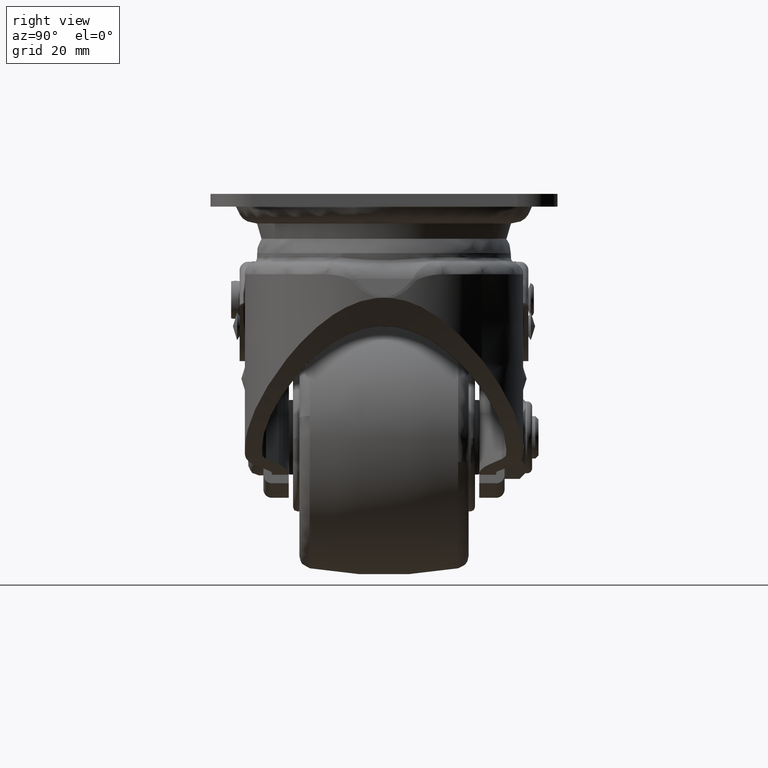
[diagram: clean part render]
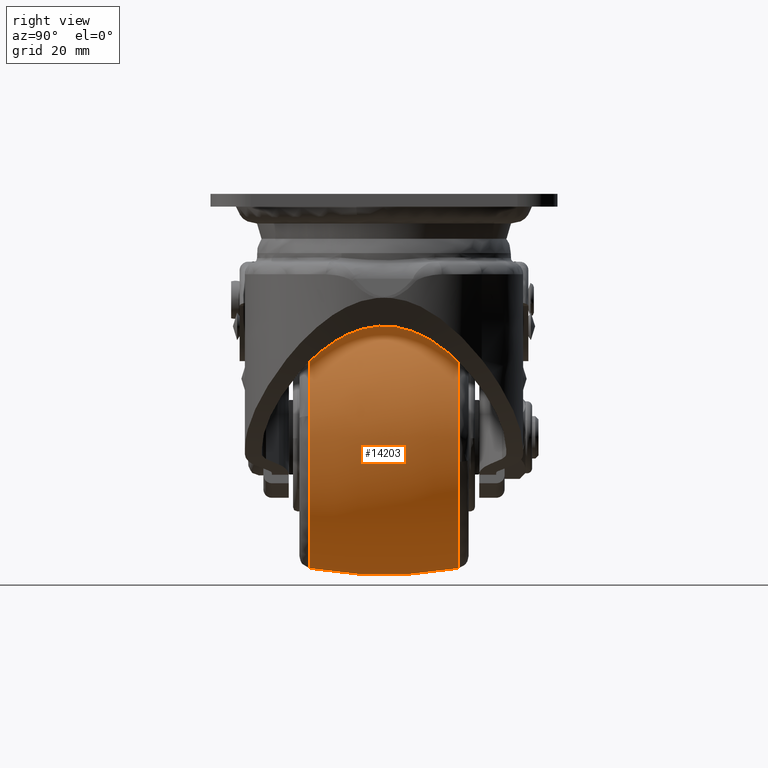
[diagram: same view with one face highlighted and labeled with its STEP entity id]
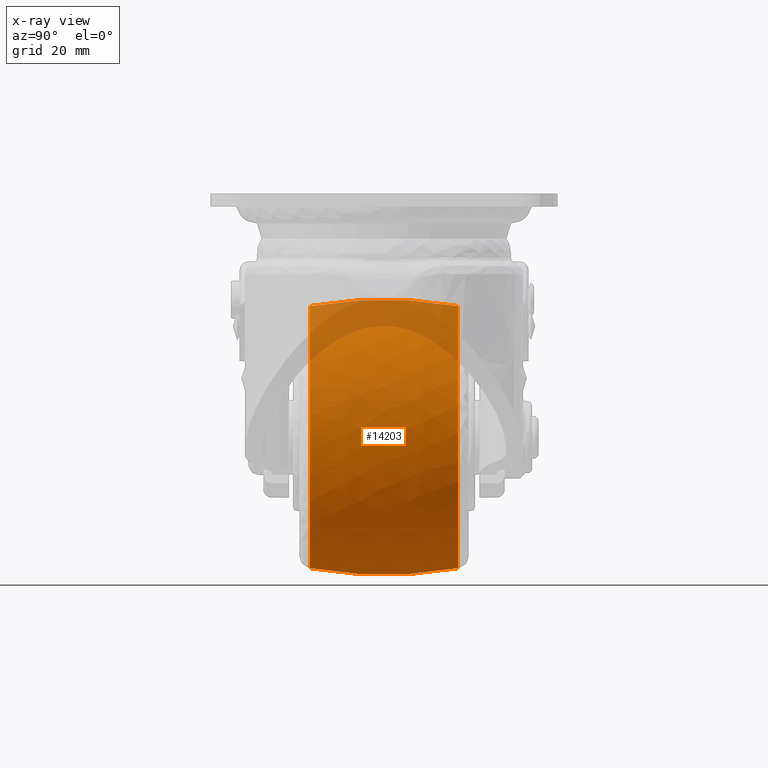
[diagram: x-ray of the same camera — body ghosted, the highlighted face saturated]
A machine part, right view. The second image highlights one B-rep face of the part: STEP entity #14203.
The next image is the same camera in x-ray: the body ghosted, the highlighted face saturated — about 13% of this face is hidden behind the body in this view.
In plain terms, the highlighted face is a freeform B-spline surface patch.
Its self-contained STEP definition (entity closure, byte-faithful):
#14060=CARTESIAN_POINT('',(-0.856139173198748,-19.280469753875106,-30.623715207231665));
#14061=CARTESIAN_POINT('',(-0.908593974985395,-9.731530490283955,-32.500000000000000));
#14062=CARTESIAN_POINT('',(-0.908593974985395,0.0,-32.500000000000007));
#14063=CARTESIAN_POINT('',(-0.908593974985395,9.731530490283953,-32.500000000000000));
#14064=CARTESIAN_POINT('',(-0.856139173198748,19.280469753875099,-30.623715207231665));
#14065=CARTESIAN_POINT('',(-0.430562556700532,-19.280469753875106,-30.623715207231669));
#14066=CARTESIAN_POINT('',(-0.456942699410385,-9.731530490283957,-32.500000000000000));
#14067=CARTESIAN_POINT('',(-0.456942699410385,0.0,-32.500000000000000));
#14068=CARTESIAN_POINT('',(-0.456942699410385,9.731530490283955,-32.500000000000000));
#14069=CARTESIAN_POINT('',(-0.430562556700532,19.280469753875096,-30.623715207231669));
#14070=CARTESIAN_POINT('',(30.623715207231665,-19.280469753875089,-30.623715207231665));
#14071=CARTESIAN_POINT('',(32.499999999999993,-9.731530490283953,-32.499999999999993));
#14072=CARTESIAN_POINT('',(32.500000000000007,0.0,-32.500000000000007));
#14073=CARTESIAN_POINT('',(32.499999999999993,9.731530490283952,-32.499999999999993));
#14074=CARTESIAN_POINT('',(30.623715207231665,19.280469753875089,-30.623715207231665));
#14075=CARTESIAN_POINT('',(30.623715207231662,-19.280469753875103,0.0));
#14076=CARTESIAN_POINT('',(32.499999999999993,-9.731530490283957,0.0));
#14077=CARTESIAN_POINT('',(32.500000000000000,0.0,0.0));
#14078=CARTESIAN_POINT('',(32.499999999999993,9.731530490283955,0.0));
#14079=CARTESIAN_POINT('',(30.623715207231673,19.280469753875103,0.0));
#14080=CARTESIAN_POINT('',(30.623715207231665,-19.280469753875089,30.623715207231665));
#14081=CARTESIAN_POINT('',(32.499999999999993,-9.731530490283953,32.499999999999993));
#14082=CARTESIAN_POINT('',(32.500000000000007,0.0,32.500000000000007));
#14083=CARTESIAN_POINT('',(32.499999999999993,9.731530490283952,32.499999999999993));
#14084=CARTESIAN_POINT('',(30.623715207231665,19.280469753875089,30.623715207231665));
#14085=CARTESIAN_POINT('',(-0.430562556700530,-19.280469753875106,30.623715207231669));
#14086=CARTESIAN_POINT('',(-0.456942699410383,-9.731530490283957,32.500000000000000));
#14087=CARTESIAN_POINT('',(-0.456942699410383,0.0,32.500000000000000));
#14088=CARTESIAN_POINT('',(-0.456942699410383,9.731530490283955,32.500000000000000));
#14089=CARTESIAN_POINT('',(-0.430562556700530,19.280469753875096,30.623715207231669));
#14090=CARTESIAN_POINT('',(-0.856139173198744,-19.280469753875106,30.623715207231665));
#14091=CARTESIAN_POINT('',(-0.908593974985391,-9.731530490283957,32.500000000000000));
#14092=CARTESIAN_POINT('',(-0.908593974985391,0.0,32.500000000000007));
#14093=CARTESIAN_POINT('',(-0.908593974985391,9.731530490283955,32.500000000000000));
#14094=CARTESIAN_POINT('',(-0.856139173198744,19.280469753875099,30.623715207231665));
#14102=(BOUNDED_SURFACE()B_SPLINE_SURFACE(2,2,((#14060,#14065,#14070,#14075,#14080,#14085,#14090),(#14061,#14066,#14071,#14076,#14081,#14086,#14091),(#14062,#14067,#14072,#14077,#14082,#14087,#14092),(#14063,#14068,#14073,#14078,#14083,#14088,#14093),(#14064,#14069,#14074,#14079,#14084,#14089,#14094)),.UNSPECIFIED.,.F.,.F.,.U.)B_SPLINE_SURFACE_WITH_KNOTS((3,2,3),(3,1,2,1,3),(0.0,19.675401992808450,39.350803985616913),(0.0,1.076955262170050,54.924718370672409,108.772481479174800,109.849436741344800),.UNSPECIFIED.)GEOMETRIC_REPRESENTATION_ITEM()RATIONAL_B_SPLINE_SURFACE(((0.980708699014471,0.975030366269227,0.685435396261778,0.969352033523983,0.685435396261778,0.975030366269227,0.980708699014471),(0.991408181386219,0.985667898317530,0.692913461814418,0.979927615248842,0.692913461814418,0.985667898317530,0.991408181386219),(1.011715728752538,1.005857864376269,0.707106781186548,1.0,0.707106781186548,1.005857864376269,1.011715728752538),(0.991408181386219,0.985667898317530,0.692913461814418,0.979927615248842,0.692913461814418,0.985667898317530,0.991408181386219),(0.980708699014471,0.975030366269227,0.685435396261778,0.969352033523983,0.685435396261778,0.975030366269227,0.980708699014471)))REPRESENTATION_ITEM('')SURFACE());
#14103=CARTESIAN_POINT('',(0.0,-17.525756904777200,-30.952261756215570));
#14104=VERTEX_POINT('',#14103);
#14105=CARTESIAN_POINT('',(0.0,17.525757398797310,-30.952261668273788));
#14106=VERTEX_POINT('',#14105);
#14107=CARTESIAN_POINT('',(0.0,-17.525756904777200,-30.952261756215570));
#14108=CARTESIAN_POINT('',(0.0,-13.731753041258729,-31.627707705307451));
#14109=CARTESIAN_POINT('',(0.0,-5.244160757840192,-32.637070499115872));
#14110=CARTESIAN_POINT('',(0.0,6.528711555005019,-32.523672457987388));
#14111=CARTESIAN_POINT('',(0.0,14.364082624947550,-31.515085282215860));
#14112=CARTESIAN_POINT('',(0.0,17.525757398797310,-30.952261668273788));
#14113=B_SPLINE_CURVE_WITH_KNOTS('',3,(#14107,#14108,#14109,#14110,#14111,#14112),.UNSPECIFIED.,.F.,.U.,(4,1,1,4),(2.074358E-009,11.560991973890641,25.599329907010421,35.233487682683823),.UNSPECIFIED.);
#14114=EDGE_CURVE('',#14104,#14106,#14113,.T.);
#14115=ORIENTED_EDGE('',*,*,#14114,.T.);
#14116=CARTESIAN_POINT('',(30.404010644363709,17.525757632874960,-5.799875218801160));
#14117=VERTEX_POINT('',#14116);
#14118=CARTESIAN_POINT('',(0.0,17.525757398797310,-30.952261668273788));
#14119=CARTESIAN_POINT('',(2.284163301907650,17.525757409237411,-30.952742287435299));
#14120=CARTESIAN_POINT('',(5.459423252968588,17.525757425089999,-30.599081582039709));
#14121=CARTESIAN_POINT('',(10.411086875688349,17.525757452797698,-29.257582977142000));
#14122=CARTESIAN_POINT('',(14.118507786583031,17.525757475709241,-27.680217664327628));
#14123=CARTESIAN_POINT('',(17.583655512929290,17.525757499645021,-25.538878561075720));
#14124=CARTESIAN_POINT('',(20.632925520466429,17.525757522458228,-23.191693632685318));
#14125=CARTESIAN_POINT('',(23.952864662444430,17.525757550190662,-19.870412732688479));
#14126=CARTESIAN_POINT('',(27.037663540342699,17.525757581184429,-15.402388973562880));
#14127=CARTESIAN_POINT('',(29.232042630799651,17.525757609494541,-10.567172478993880));
#14128=CARTESIAN_POINT('',(30.101365819403501,17.525757625491892,-7.386867972357464));
#14129=CARTESIAN_POINT('',(30.404010644363709,17.525757632874960,-5.799875218801160));
#14130=B_SPLINE_CURVE_WITH_KNOTS('',3,(#14118,#14119,#14120,#14121,#14122,#14123,#14124,#14125,#14126,#14127,#14128,#14129),.UNSPECIFIED.,.F.,.U.,(4,1,1,1,1,1,1,1,1,4),(0.000000057731363,6.852342200838592,9.526432670068871,15.376020998603050,18.885774997789639,21.726917074534040,26.907971532102920,32.924695718113597,37.938609643321527,42.785386132696857),.UNSPECIFIED.);
#14131=EDGE_CURVE('',#14106,#14117,#14130,.T.);
#14132=ORIENTED_EDGE('',*,*,#14131,.T.);
#14133=CARTESIAN_POINT('',(0.0,17.525757398711619,30.952261668289051));
#14134=VERTEX_POINT('',#14133);
#14135=CARTESIAN_POINT('',(30.404010644363709,17.525757632874960,-5.799875218801160));
#14136=CARTESIAN_POINT('',(30.816210809150661,17.525757625996441,-3.640829887698513));
#14137=CARTESIAN_POINT('',(31.084289574936790,17.525757614467519,-0.371750404461972));
#14138=CARTESIAN_POINT('',(30.744127757767039,17.525757596530269,4.088197736654201));
#14139=CARTESIAN_POINT('',(30.139817033729560,17.525757582492808,7.298961754163256));
#14140=CARTESIAN_POINT('',(29.013912450203179,17.525757564827089,11.037345102150580));
#14141=CARTESIAN_POINT('',(27.319525889203089,17.525757545291501,14.799844457867010));
#14142=CARTESIAN_POINT('',(24.886989071789792,17.525757523460069,18.558924646848819));
#14143=CARTESIAN_POINT('',(22.205898339878949,17.525757503230711,21.688736586414699));
#14144=CARTESIAN_POINT('',(19.245826490913871,17.525757483910390,24.347852067073941));
#14145=CARTESIAN_POINT('',(15.973181017667910,17.525757465113461,26.609726922200242));
#14146=CARTESIAN_POINT('',(12.313182780960300,17.525757446496740,28.504143356068340));
#14147=CARTESIAN_POINT('',(8.426312728130156,17.525757429131311,29.879833802141381));
#14148=CARTESIAN_POINT('',(4.254194455213054,17.525757412777860,30.752319629986580));
#14149=CARTESIAN_POINT('',(1.488980895002066,17.525757403369401,30.952342266698590));
#14150=CARTESIAN_POINT('',(0.0,17.525757398711619,30.952261668289051));
#14151=B_SPLINE_CURVE_WITH_KNOTS('',3,(#14135,#14136,#14137,#14138,#14139,#14140,#14141,#14142,#14143,#14144,#14145,#14146,#14147,#14148,#14149,#14150),.UNSPECIFIED.,.F.,.U.,(4,1,1,1,1,1,1,1,1,1,1,1,1,4),(0.000000074662104,6.594036469592311,9.784726138077552,13.400831171962810,16.378801175785171,21.483910365155069,25.738155883950000,29.779573433638969,33.821109766040387,37.649937563571171,41.691477252978672,46.158433652287869,49.987231402801662,54.454168084194450),.UNSPECIFIED.);
#14152=EDGE_CURVE('',#14117,#14134,#14151,.T.);
#14153=ORIENTED_EDGE('',*,*,#14152,.T.);
#14154=CARTESIAN_POINT('',(0.0,-17.525756904688699,30.952261756231341));
#14155=VERTEX_POINT('',#14154);
#14156=CARTESIAN_POINT('',(0.0,-17.525756904688699,30.952261756231341));
#14157=CARTESIAN_POINT('',(0.0,-13.099426192627050,31.740423722107799));
#14158=CARTESIAN_POINT('',(0.0,-6.060097870994613,32.508459473154623));
#14159=CARTESIAN_POINT('',(0.0,5.693086236895363,32.540828550917702));
#14160=CARTESIAN_POINT('',(0.0,12.918759671097369,31.772606386088501));
#14161=CARTESIAN_POINT('',(0.0,17.525757398711619,30.952261668289051));
#14162=B_SPLINE_CURVE_WITH_KNOTS('',3,(#14156,#14157,#14158,#14159,#14160,#14161),.UNSPECIFIED.,.F.,.U.,(4,1,1,4),(2.077499E-009,13.487826392860921,21.195138228113748,35.233487682506912),.UNSPECIFIED.);
#14163=EDGE_CURVE('',#14155,#14134,#14162,.T.);
#14164=ORIENTED_EDGE('',*,*,#14163,.F.);
#14165=CARTESIAN_POINT('',(30.540160180517539,-17.525757149005031,5.033987871736263));
#14166=VERTEX_POINT('',#14165);
#14167=CARTESIAN_POINT('',(30.540160180517539,-17.525757149005031,5.033987871736263));
#14168=CARTESIAN_POINT('',(30.171572617331929,-17.525757138453429,7.272804346847791));
#14169=CARTESIAN_POINT('',(29.107989096521209,-17.525757118542479,11.063991061530171));
#14170=CARTESIAN_POINT('',(26.464933743618172,-17.525757085350929,16.358990358311459));
#14171=CARTESIAN_POINT('',(23.508455346056589,-17.525757055893749,20.338759944916291));
#14172=CARTESIAN_POINT('',(19.885448596851159,-17.525757025112839,23.868941405167028));
#14173=CARTESIAN_POINT('',(16.235614978438171,-17.525756997768191,26.496697575435089));
#14174=CARTESIAN_POINT('',(12.281729640665780,-17.525756971455490,28.505356736036241));
#14175=CARTESIAN_POINT('',(8.907597276250712,-17.525756951041540,29.702124997908282));
#14176=CARTESIAN_POINT('',(4.878093573378161,-17.525756928473360,30.672919979011109));
#14177=CARTESIAN_POINT('',(1.985329298955690,-17.525756913918890,30.952538935773472));
#14178=CARTESIAN_POINT('',(0.0,-17.525756904688699,30.952261756231341));
#14179=B_SPLINE_CURVE_WITH_KNOTS('',3,(#14167,#14168,#14169,#14170,#14171,#14172,#14173,#14174,#14175,#14176,#14177,#14178),.UNSPECIFIED.,.F.,.U.,(4,1,1,1,1,1,1,1,1,4),(0.000000060971736,6.806764528404450,11.741672311713369,17.697613645466131,21.611529273632829,26.886717073184080,31.140948324566232,34.884679294881593,37.607386250612791,43.563304237466063),.UNSPECIFIED.);
#14180=EDGE_CURVE('',#14166,#14155,#14179,.T.);
#14181=ORIENTED_EDGE('',*,*,#14180,.F.);
#14182=CARTESIAN_POINT('',(0.0,-17.525756904777200,-30.952261756215570));
#14183=CARTESIAN_POINT('',(2.236541337373022,-17.525756912265411,-30.952691506914661));
#14184=CARTESIAN_POINT('',(5.381439462148137,-17.525756924149661,-30.609849260347168));
#14185=CARTESIAN_POINT('',(9.436996071649165,-17.525756942001198,-29.527375206296870));
#14186=CARTESIAN_POINT('',(12.323488747614350,-17.525756955896838,-28.455250480570982));
#14187=CARTESIAN_POINT('',(15.897400364529350,-17.525756974860428,-26.681928671842780));
#14188=CARTESIAN_POINT('',(19.307114000125690,-17.525756995538629,-24.334649760068132));
#14189=CARTESIAN_POINT('',(22.897653900384832,-17.525757020718380,-20.999533846138039));
#14190=CARTESIAN_POINT('',(25.567078267044160,-17.525757042860139,-17.652561179935439));
#14191=CARTESIAN_POINT('',(27.599201845803091,-17.525757063533540,-14.137251294482050));
#14192=CARTESIAN_POINT('',(29.222726115539380,-17.525757083337581,-10.494372263440880));
#14193=CARTESIAN_POINT('',(30.322626976760571,-17.525757101902769,-6.722399158764659));
#14194=CARTESIAN_POINT('',(30.894856842089929,-17.525757119672029,-2.703263616529584));
#14195=CARTESIAN_POINT('',(31.017598001280820,-17.525757134708471,1.004352927391276));
#14196=CARTESIAN_POINT('',(30.778932992866689,-17.525757144092271,3.585844929467568));
#14197=CARTESIAN_POINT('',(30.540160180517539,-17.525757149005031,5.033987871736263));
#14198=B_SPLINE_CURVE_WITH_KNOTS('',3,(#14182,#14183,#14184,#14185,#14186,#14187,#14188,#14189,#14190,#14191,#14192,#14193,#14194,#14195,#14196,#14197),.UNSPECIFIED.,.F.,.U.,(4,1,1,1,1,1,1,1,1,1,1,1,1,4),(0.000000079262584,6.709500423306281,9.435260081370011,12.580369605107981,15.935148766518710,21.386668749848951,24.951100663670470,30.612206484023829,34.176646550455139,37.112089471295789,42.563592697293238,45.918364881812302,49.273162214324223,53.676248560882733),.UNSPECIFIED.);
#14199=EDGE_CURVE('',#14104,#14166,#14198,.T.);
#14200=ORIENTED_EDGE('',*,*,#14199,.F.);
#14201=EDGE_LOOP('',(#14115,#14132,#14153,#14164,#14181,#14200));
#14202=FACE_OUTER_BOUND('',#14201,.T.);
#14203=ADVANCED_FACE('',(#14202),#14102,.T.);